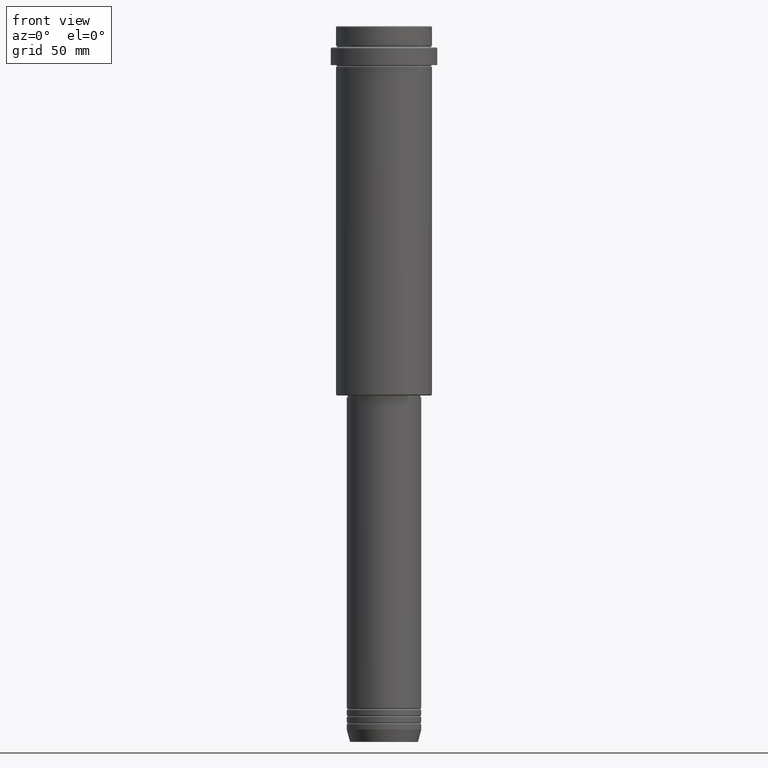
[diagram: clean part render]
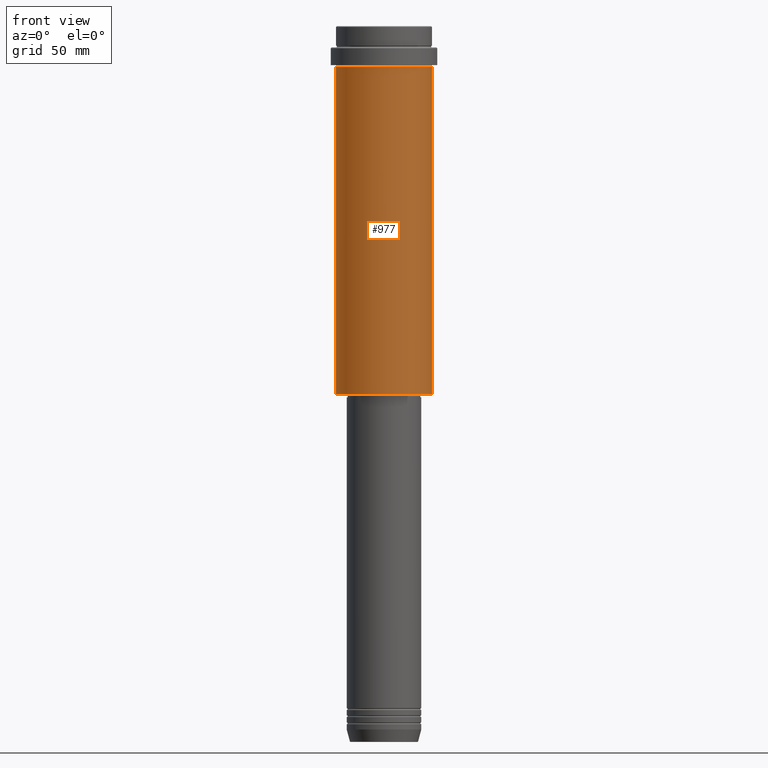
[diagram: same view with one face highlighted and labeled with its STEP entity id]
A machine part, front view. The second image highlights one B-rep face of the part: STEP entity #977.
In plain terms, the highlighted cylindrical surface (partial cylindrical patch) has radius 27 mm, axis along (-0, -0, 1).
Its self-contained STEP definition (entity closure, byte-faithful):
#53 = ORIENTED_EDGE ( 'NONE', *, *, #630, .F. ) ;
#90 = DIRECTION ( 'NONE',  ( -0.000000000000000000, -0.000000000000000000, 1.000000000000000000 ) ) ;
#94 = DIRECTION ( 'NONE',  ( -0.000000000000000000, -0.000000000000000000, 1.000000000000000000 ) ) ;
#223 = VERTEX_POINT ( 'NONE', #792 ) ;
#306 = CARTESIAN_POINT ( 'NONE',  ( 0.000000000000000000, 0.000000000000000000, 0.000000000000000000 ) ) ;
#309 = DIRECTION ( 'NONE',  ( -0.000000000000000000, -0.000000000000000000, 1.000000000000000000 ) ) ;
#318 = DIRECTION ( 'NONE',  ( -0.000000000000000000, -0.000000000000000000, 1.000000000000000000 ) ) ;
#389 = CIRCLE ( 'NONE', #730, 26.99999999999999645 ) ;
#442 = AXIS2_PLACEMENT_3D ( 'NONE', #306, #318, #847 ) ;
#449 = CARTESIAN_POINT ( 'NONE',  ( 26.99999999999999645, 0.000000000000000000, -23.00000000000000000 ) ) ;
#537 = CARTESIAN_POINT ( 'NONE',  ( -26.99999999999999645, 3.306546357697853339E-15, -207.5000000000000853 ) ) ;
#542 = CYLINDRICAL_SURFACE ( 'NONE', #442, 26.99999999999999645 ) ;
#571 = EDGE_LOOP ( 'NONE', ( #1042, #1341, #1063, #53 ) ) ;
#575 = EDGE_CURVE ( 'NONE', #633, #1012, #1073, .T. ) ;
#596 = EDGE_CURVE ( 'NONE', #1012, #1165, #623, .T. ) ;
#618 = VECTOR ( 'NONE', #94, 1000.000000000000000 ) ;
#623 = LINE ( 'NONE', #1184, #618 ) ;
#630 = EDGE_CURVE ( 'NONE', #223, #1165, #389, .T. ) ;
#633 = VERTEX_POINT ( 'NONE', #537 ) ;
#694 = VECTOR ( 'NONE', #90, 1000.000000000000000 ) ;
#730 = AXIS2_PLACEMENT_3D ( 'NONE', #961, #735, #1397 ) ;
#735 = DIRECTION ( 'NONE',  ( -0.000000000000000000, -0.000000000000000000, 1.000000000000000000 ) ) ;
#792 = CARTESIAN_POINT ( 'NONE',  ( -26.99999999999999645, 3.306546357697853339E-15, -23.00000000000000000 ) ) ;
#847 = DIRECTION ( 'NONE',  ( 1.000000000000000000, 0.000000000000000000, 0.000000000000000000 ) ) ;
#859 = FACE_OUTER_BOUND ( 'NONE', #571, .T. ) ;
#961 = CARTESIAN_POINT ( 'NONE',  ( 0.000000000000000000, 0.000000000000000000, -23.00000000000000000 ) ) ;
#977 = ADVANCED_FACE ( 'NONE', ( #859 ), #542, .T. ) ;
#1012 = VERTEX_POINT ( 'NONE', #1304 ) ;
#1013 = EDGE_CURVE ( 'NONE', #633, #223, #1093, .T. ) ;
#1042 = ORIENTED_EDGE ( 'NONE', *, *, #1013, .F. ) ;
#1063 = ORIENTED_EDGE ( 'NONE', *, *, #596, .T. ) ;
#1073 = CIRCLE ( 'NONE', #1190, 26.99999999999999645 ) ;
#1076 = CARTESIAN_POINT ( 'NONE',  ( -26.99999999999999645, 3.306546357697853339E-15, 0.000000000000000000 ) ) ;
#1093 = LINE ( 'NONE', #1076, #694 ) ;
#1165 = VERTEX_POINT ( 'NONE', #449 ) ;
#1184 = CARTESIAN_POINT ( 'NONE',  ( 26.99999999999999645, 0.000000000000000000, 0.000000000000000000 ) ) ;
#1190 = AXIS2_PLACEMENT_3D ( 'NONE', #1301, #309, #1413 ) ;
#1301 = CARTESIAN_POINT ( 'NONE',  ( 0.000000000000000000, 0.000000000000000000, -207.5000000000000853 ) ) ;
#1304 = CARTESIAN_POINT ( 'NONE',  ( 26.99999999999999645, 0.000000000000000000, -207.5000000000000853 ) ) ;
#1341 = ORIENTED_EDGE ( 'NONE', *, *, #575, .T. ) ;
#1397 = DIRECTION ( 'NONE',  ( 1.000000000000000000, 0.000000000000000000, 0.000000000000000000 ) ) ;
#1413 = DIRECTION ( 'NONE',  ( -1.000000000000000000, 0.000000000000000000, 0.000000000000000000 ) ) ;